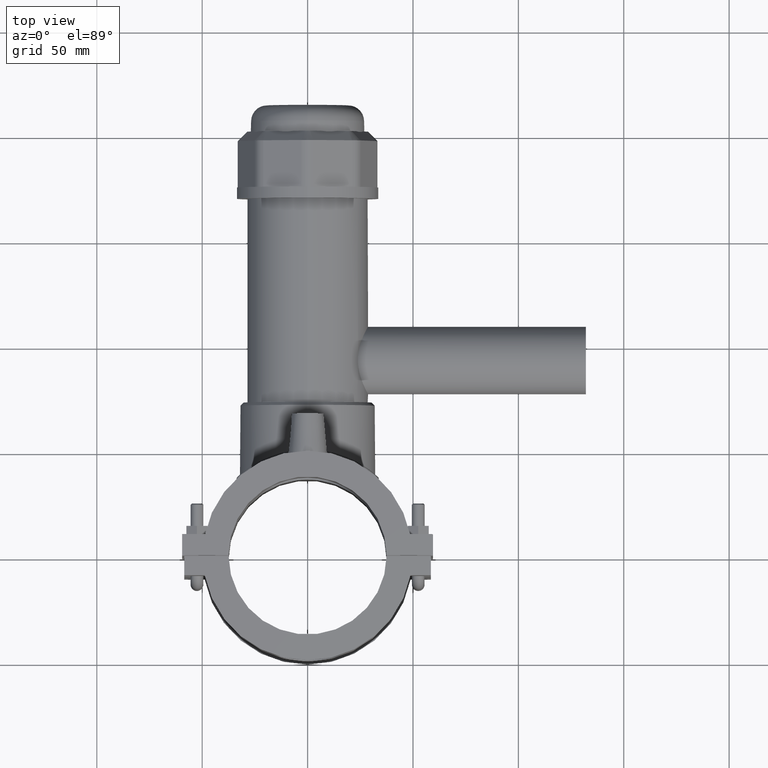
[diagram: clean part render]
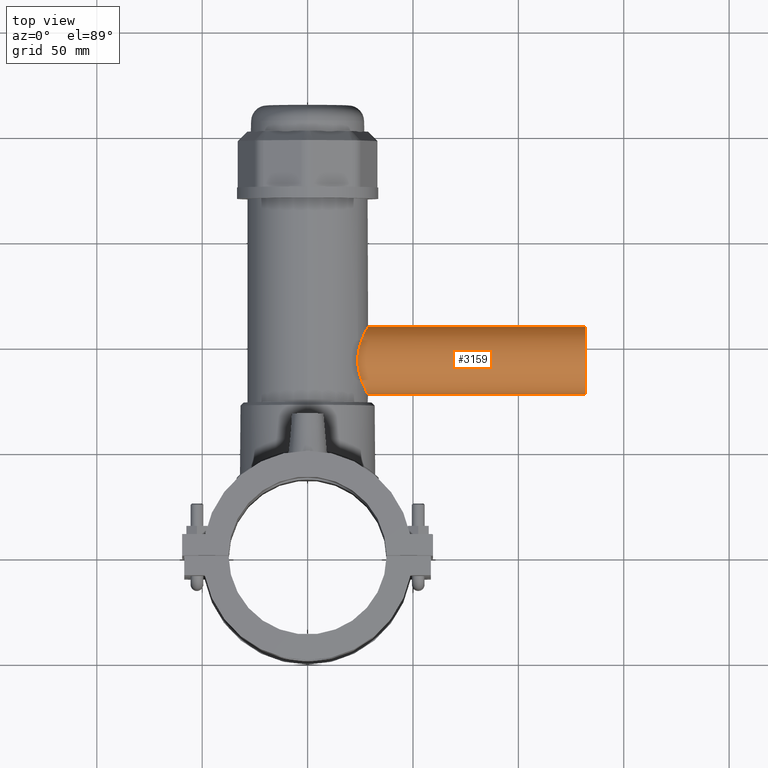
[diagram: same view with one face highlighted and labeled with its STEP entity id]
A machine part, top view. The second image highlights one B-rep face of the part: STEP entity #3159.
In plain terms, the highlighted cylindrical surface (bore or boss wall) has radius 16 mm, axis along (1, 0, 0).
Its self-contained STEP definition (entity closure, byte-faithful):
#625=FACE_BOUND('',#975,.T.);
#683=B_SPLINE_CURVE_WITH_KNOTS('',3,(#4769,#4770,#4771,#4772,#4773,#4774,
#4775,#4776,#4777,#4778,#4779,#4780,#4781,#4782,#4783,#4784,#4785,#4786,
#4787,#4788,#4789,#4790,#4791,#4792,#4793,#4794,#4795,#4796,#4797,#4798,
#4799,#4800,#4801,#4802,#4803,#4804,#4805,#4806,#4807,#4808,#4809,#4810,
#4811,#4812,#4813,#4814,#4815,#4816,#4817,#4818,#4819,#4820,#4821,#4822,
#4823,#4824,#4825,#4826),.UNSPECIFIED.,.T.,.F.,(4,2,2,2,2,2,2,2,2,2,2,2,
2,2,2,2,2,2,2,2,2,2,2,2,2,2,2,2,4),(0.,0.310024062751472,0.620048125502944,
1.24009625100589,1.5487146216066,1.85733299220732,2.16595136280803,2.47456973340875,
2.78318810400946,3.09180647461018,3.4004248452109,3.70904321581161,4.32909134131456,
4.63911540406603,4.9491394668175,5.25916352956897,5.56918759232044,6.18923571782339,
6.4978540884241,6.80647245902482,7.11509082962553,7.42370920022625,7.73232757082696,
8.04094594142768,8.34956431202839,8.65818268262911,9.27823080813205,9.58825487088352,
9.898278933635),.UNSPECIFIED.);
#729=CYLINDRICAL_SURFACE('',#3355,16.);
#779=FACE_OUTER_BOUND('',#974,.T.);
#974=EDGE_LOOP('',(#2108));
#975=EDGE_LOOP('',(#2109));
#1220=CIRCLE('',#3356,16.);
#1339=VERTEX_POINT('',#4766);
#1340=VERTEX_POINT('',#4768);
#1649=EDGE_CURVE('',#1339,#1339,#1220,.T.);
#1650=EDGE_CURVE('',#1340,#1340,#683,.T.);
#2108=ORIENTED_EDGE('',*,*,#1649,.F.);
#2109=ORIENTED_EDGE('',*,*,#1650,.F.);
#3159=ADVANCED_FACE('',(#779,#625),#729,.T.);
#3355=AXIS2_PLACEMENT_3D('',#4765,#3673,#3674);
#3356=AXIS2_PLACEMENT_3D('',#4767,#3675,#3676);
#3673=DIRECTION('center_axis',(1.,0.,0.));
#3674=DIRECTION('ref_axis',(0.,1.,0.));
#3675=DIRECTION('center_axis',(1.,0.,0.));
#3676=DIRECTION('ref_axis',(0.,0.,-1.));
#4765=CARTESIAN_POINT('Origin',(66.,93.5,0.));
#4766=CARTESIAN_POINT('',(132.,109.5,0.));
#4767=CARTESIAN_POINT('Origin',(132.,93.5,0.));
#4768=CARTESIAN_POINT('',(23.8111876278778,93.5,-16.));
#4769=CARTESIAN_POINT('Ctrl Pts',(23.8111876278778,93.5,-16.));
#4770=CARTESIAN_POINT('Ctrl Pts',(23.8111876278778,92.4665864574951,-16.));
#4771=CARTESIAN_POINT('Ctrl Pts',(23.880478452823,91.408412661704,-15.8983464775177));
#4772=CARTESIAN_POINT('Ctrl Pts',(24.152877941742,89.321603165485,-15.4813810304244));
#4773=CARTESIAN_POINT('Ctrl Pts',(24.3554269536388,88.2928549613819,-15.1662667625565));
#4774=CARTESIAN_POINT('Ctrl Pts',(25.0950900624145,85.3518694645497,-13.9329896390834));
#4775=CARTESIAN_POINT('Ctrl Pts',(25.7621546699018,83.5847833526503,-12.7122003506198));
#4776=CARTESIAN_POINT('Ctrl Pts',(26.6610630828099,81.4902160533234,-10.6176330512929));
#4777=CARTESIAN_POINT('Ctrl Pts',(26.9661175321181,80.8327721367321,-9.82977757694973));
#4778=CARTESIAN_POINT('Ctrl Pts',(27.5334301182555,79.6660945083462,-8.10593904950984));
#4779=CARTESIAN_POINT('Ctrl Pts',(27.7952898355371,79.1567731827115,-7.16988419825883));
#4780=CARTESIAN_POINT('Ctrl Pts',(28.229378457324,78.3326722253271,-5.20457205948737));
#4781=CARTESIAN_POINT('Ctrl Pts',(28.4017357774322,78.0172301033117,-4.17336999148483));
#4782=CARTESIAN_POINT('Ctrl Pts',(28.6308648952535,77.6008178463453,-2.08547059683271));
#4783=CARTESIAN_POINT('Ctrl Pts',(28.6875,77.5,-1.02872790200239));
#4784=CARTESIAN_POINT('Ctrl Pts',(28.6875,77.5,1.02872790200238));
#4785=CARTESIAN_POINT('Ctrl Pts',(28.6308648952535,77.6008178463453,2.08547059683271));
#4786=CARTESIAN_POINT('Ctrl Pts',(28.4017357774322,78.0172301033117,4.17336999148483));
#4787=CARTESIAN_POINT('Ctrl Pts',(28.229378457324,78.3326722253271,5.20457205948737));
#4788=CARTESIAN_POINT('Ctrl Pts',(27.7952898355371,79.1567731827115,7.16988419825884));
#4789=CARTESIAN_POINT('Ctrl Pts',(27.5334301182555,79.6660945083462,8.10593904950984));
#4790=CARTESIAN_POINT('Ctrl Pts',(26.9661175321181,80.8327721367321,9.82977757694973));
#4791=CARTESIAN_POINT('Ctrl Pts',(26.66106308281,81.4902160533234,10.6176330512929));
#4792=CARTESIAN_POINT('Ctrl Pts',(25.7621546699018,83.5847833526503,12.7122003506198));
#4793=CARTESIAN_POINT('Ctrl Pts',(25.0950900624145,85.3518694645497,13.9329896390834));
#4794=CARTESIAN_POINT('Ctrl Pts',(24.3554269536388,88.2928549613819,15.1662667625565));
#4795=CARTESIAN_POINT('Ctrl Pts',(24.1528779417421,89.321603165485,15.4813810304244));
#4796=CARTESIAN_POINT('Ctrl Pts',(23.880478452823,91.4084126617039,15.8983464775177));
#4797=CARTESIAN_POINT('Ctrl Pts',(23.8111876278778,92.4665864574951,16.));
#4798=CARTESIAN_POINT('Ctrl Pts',(23.8111876278778,94.5334135425049,16.));
#4799=CARTESIAN_POINT('Ctrl Pts',(23.880478452823,95.5915873382961,15.8983464775177));
#4800=CARTESIAN_POINT('Ctrl Pts',(24.1528779417421,97.678396834515,15.4813810304244));
#4801=CARTESIAN_POINT('Ctrl Pts',(24.3554269536388,98.7071450386181,15.1662667625565));
#4802=CARTESIAN_POINT('Ctrl Pts',(25.0950900624145,101.64813053545,13.9329896390834));
#4803=CARTESIAN_POINT('Ctrl Pts',(25.7621546699018,103.41521664735,12.7122003506198));
#4804=CARTESIAN_POINT('Ctrl Pts',(26.66106308281,105.509783946677,10.6176330512929));
#4805=CARTESIAN_POINT('Ctrl Pts',(26.9661175321181,106.167227863268,9.82977757694973));
#4806=CARTESIAN_POINT('Ctrl Pts',(27.5334301182555,107.333905491654,8.10593904950984));
#4807=CARTESIAN_POINT('Ctrl Pts',(27.7952898355371,107.843226817289,7.16988419825883));
#4808=CARTESIAN_POINT('Ctrl Pts',(28.229378457324,108.667327774673,5.20457205948737));
#4809=CARTESIAN_POINT('Ctrl Pts',(28.4017357774322,108.982769896688,4.17336999148484));
#4810=CARTESIAN_POINT('Ctrl Pts',(28.6308648952535,109.399182153655,2.08547059683272));
#4811=CARTESIAN_POINT('Ctrl Pts',(28.6875,109.5,1.02872790200239));
#4812=CARTESIAN_POINT('Ctrl Pts',(28.6875,109.5,-1.02872790200238));
#4813=CARTESIAN_POINT('Ctrl Pts',(28.6308648952535,109.399182153655,-2.08547059683271));
#4814=CARTESIAN_POINT('Ctrl Pts',(28.4017357774322,108.982769896688,-4.17336999148482));
#4815=CARTESIAN_POINT('Ctrl Pts',(28.229378457324,108.667327774673,-5.20457205948736));
#4816=CARTESIAN_POINT('Ctrl Pts',(27.7952898355371,107.843226817289,-7.16988419825883));
#4817=CARTESIAN_POINT('Ctrl Pts',(27.5334301182555,107.333905491654,-8.10593904950984));
#4818=CARTESIAN_POINT('Ctrl Pts',(26.9661175321181,106.167227863268,-9.82977757694972));
#4819=CARTESIAN_POINT('Ctrl Pts',(26.6610630828099,105.509783946677,-10.6176330512929));
#4820=CARTESIAN_POINT('Ctrl Pts',(25.7621546699018,103.41521664735,-12.7122003506198));
#4821=CARTESIAN_POINT('Ctrl Pts',(25.0950900624145,101.64813053545,-13.9329896390834));
#4822=CARTESIAN_POINT('Ctrl Pts',(24.3554269536388,98.7071450386181,-15.1662667625565));
#4823=CARTESIAN_POINT('Ctrl Pts',(24.152877941742,97.678396834515,-15.4813810304244));
#4824=CARTESIAN_POINT('Ctrl Pts',(23.880478452823,95.5915873382961,-15.8983464775177));
#4825=CARTESIAN_POINT('Ctrl Pts',(23.8111876278778,94.5334135425049,-16.));
#4826=CARTESIAN_POINT('Ctrl Pts',(23.8111876278778,93.5,-16.));